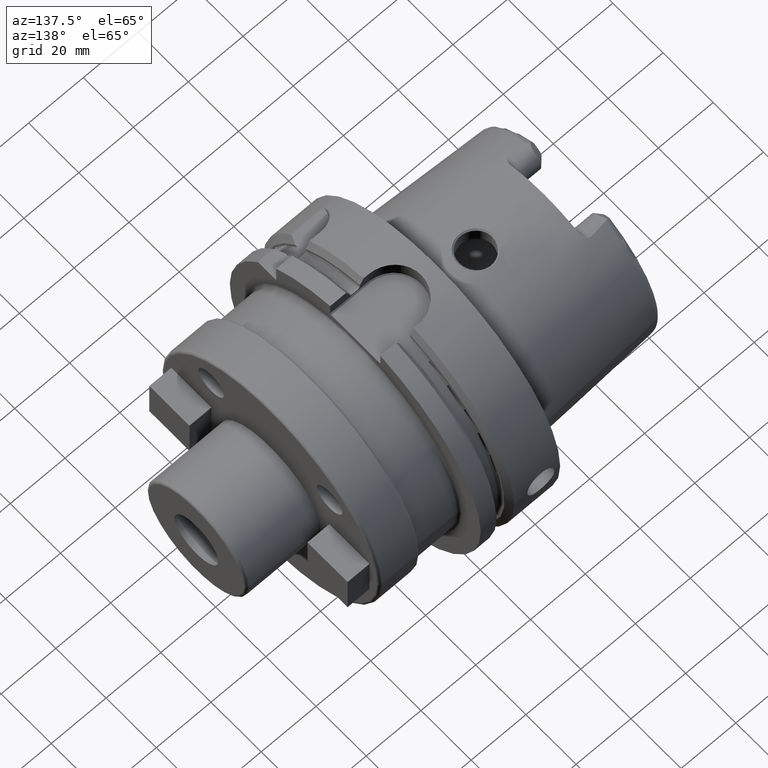
[diagram: clean part render]
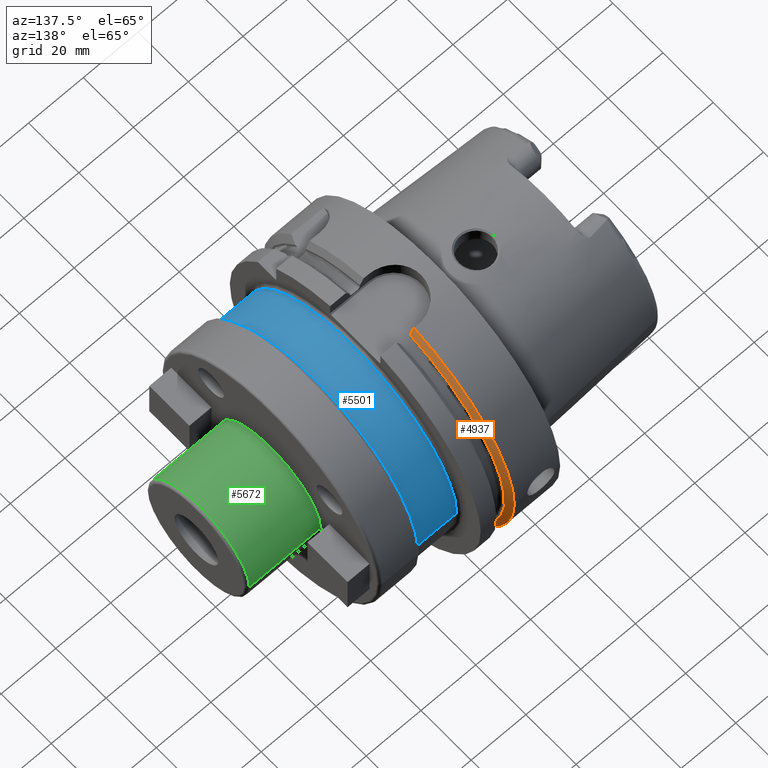
[diagram: same view with three faces highlighted in distinct colors, each labeled with its STEP entity id]
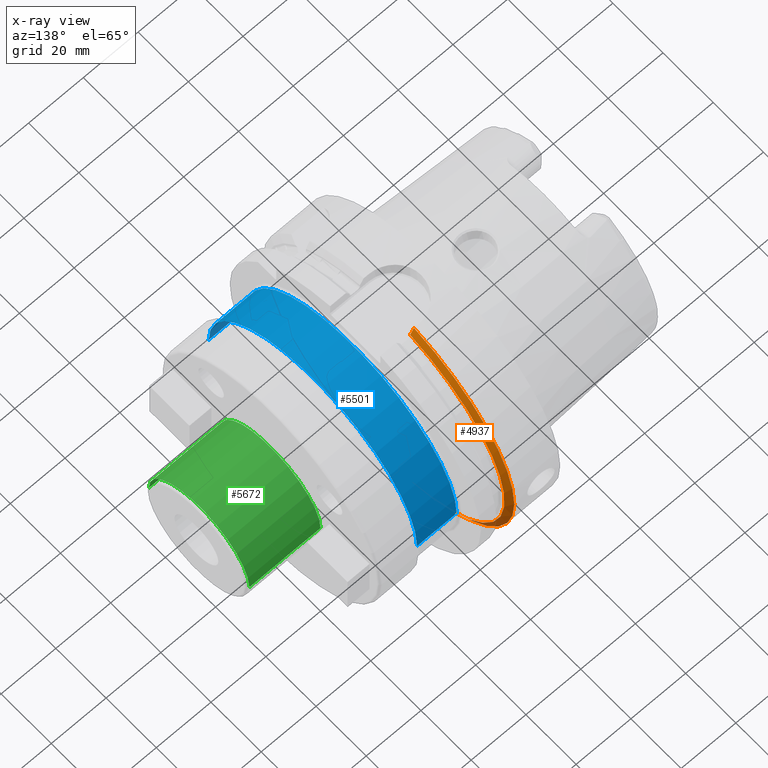
[diagram: x-ray of the same camera — body ghosted, the three highlighted faces saturated]
A machine part, auxiliary view with three faces highlighted in distinct colors.
The next image is the same camera in x-ray (body ghosted, the three faces saturated) — at least one of them is partly hidden behind the body in this view.
Their STEP definitions:

[orange] entity #4937 — the highlighted conical surface has half-angle 60 deg.
#983=CARTESIAN_POINT('',(1.675240473581E1,0.E0,0.E0));
#984=DIRECTION('',(1.E0,0.E0,0.E0));
#985=DIRECTION('',(0.E0,1.E0,0.E0));
#986=AXIS2_PLACEMENT_3D('',#983,#984,#985);
#1153=CARTESIAN_POINT('',(1.675240473581E1,0.E0,0.E0));
#1154=DIRECTION('',(1.E0,0.E0,0.E0));
#1155=DIRECTION('',(0.E0,2.2E-1,-9.754998718606E-1));
#1156=AXIS2_PLACEMENT_3D('',#1153,#1154,#1155);
#1293=CARTESIAN_POINT('',(1.675240473581E1,1.1E1,-4.877499359303E1));
#1294=CARTESIAN_POINT('',(1.690924381756E1,1.1E1,-4.849651763825E1));
#1295=CARTESIAN_POINT('',(1.722003488111E1,1.1E1,-4.794446101512E1));
#1296=CARTESIAN_POINT('',(1.767748451792E1,1.1E1,-4.713119970766E1));
#1297=CARTESIAN_POINT('',(1.797678145324E1,1.1E1,-4.659863454325E1));
#1298=CARTESIAN_POINT('',(1.8125E1,1.1E1,-4.633477721644E1));
#1300=CARTESIAN_POINT('',(1.8125E1,0.E0,0.E0));
#1301=DIRECTION('',(1.E0,0.E0,0.E0));
#1302=DIRECTION('',(0.E0,2.309827916554E-1,-9.729578356533E-1));
#1303=AXIS2_PLACEMENT_3D('',#1300,#1301,#1302);
#1305=CARTESIAN_POINT('',(1.8125E1,1.E1,4.656083740331E1));
#1306=CARTESIAN_POINT('',(1.797658514585E1,1.E1,4.682376142925E1));
#1307=CARTESIAN_POINT('',(1.767702607707E1,1.E1,4.735424823675E1));
#1308=CARTESIAN_POINT('',(1.721956688963E1,1.E1,4.816377318979E1));
#1309=CARTESIAN_POINT('',(1.690904309270E1,1.E1,4.871289474479E1));
#1310=CARTESIAN_POINT('',(1.675240473581E1,1.E1,4.898979485566E1));
#3290=CARTESIAN_POINT('',(1.675240473581E1,5.E1,0.E0));
#3291=VERTEX_POINT('',#3290);
#3312=CARTESIAN_POINT('',(1.675240473581E1,1.E1,4.898979485566E1));
#3313=VERTEX_POINT('',#3312);
#3318=CARTESIAN_POINT('',(1.8125E1,1.E1,4.656083740331E1));
#3320=VERTEX_POINT('',#3318);
#3341=CARTESIAN_POINT('',(1.675240473581E1,1.1E1,-4.877499359303E1));
#3343=VERTEX_POINT('',#3341);
#3356=CARTESIAN_POINT('',(1.8125E1,1.1E1,-4.633477721644E1));
#3358=VERTEX_POINT('',#3356);
#4923=CARTESIAN_POINT('',(1.743870236790E1,0.E0,0.E0));
#4924=DIRECTION('',(-1.E0,0.E0,0.E0));
#4925=DIRECTION('',(0.E0,1.E0,0.E0));
#4926=AXIS2_PLACEMENT_3D('',#4923,#4924,#4925);
#4927=CONICAL_SURFACE('',#4926,4.881129763210E1,6.E1);
#4928=ORIENTED_EDGE('',*,*,#4820,.T.);
#4930=ORIENTED_EDGE('',*,*,#4929,.T.);
#4932=ORIENTED_EDGE('',*,*,#4931,.T.);
#4933=ORIENTED_EDGE('',*,*,#4599,.F.);
#4934=ORIENTED_EDGE('',*,*,#4780,.F.);
#4935=EDGE_LOOP('',(#4928,#4930,#4932,#4933,#4934));
#4936=FACE_OUTER_BOUND('',#4935,.F.);
#4937=ADVANCED_FACE('',(#4936),#4927,.T.);
#987=CIRCLE('',#986,5.E1);
#1157=CIRCLE('',#1156,5.E1);
#1299=B_SPLINE_CURVE_WITH_KNOTS('',3,(#1293,#1294,#1295,#1296,#1297,#1298),
.UNSPECIFIED.,.F.,.F.,(4,1,1,4),(0.E0,3.333333333333E-1,6.666666666667E-1,1.E0),
.UNSPECIFIED.);
#1304=CIRCLE('',#1303,4.762259526419E1);
#1311=B_SPLINE_CURVE_WITH_KNOTS('',3,(#1305,#1306,#1307,#1308,#1309,#1310),
.UNSPECIFIED.,.F.,.F.,(4,1,1,4),(0.E0,3.333333333333E-1,6.666666666667E-1,1.E0),
.UNSPECIFIED.);
#4599=EDGE_CURVE('',#3291,#3313,#987,.T.);
#4780=EDGE_CURVE('',#3343,#3291,#1157,.T.);
#4820=EDGE_CURVE('',#3343,#3358,#1299,.T.);
#4929=EDGE_CURVE('',#3358,#3320,#1304,.T.);
#4931=EDGE_CURVE('',#3320,#3313,#1311,.T.);

[blue] entity #5501 — the highlighted cylindrical surface (partial cylindrical patch) has radius 41.5 mm, axis along (1, 0, 0).
#1820=DIRECTION('',(1.E0,0.E0,1.373446375787E-14));
#1821=VECTOR('',#1820,1.45E1);
#1822=CARTESIAN_POINT('',(3.E1,4.15E1,-2.310847920756E-14));
#1823=LINE('',#1822,#1821);
#1829=DIRECTION('',(1.E0,0.E0,-1.354376381161E-14));
#1830=VECTOR('',#1829,1.45E1);
#1831=CARTESIAN_POINT('',(3.E1,-4.15E1,2.043972103181E-14));
#1832=LINE('',#1831,#1830);
#1863=CARTESIAN_POINT('',(4.45E1,0.E0,0.E0));
#1864=DIRECTION('',(-1.E0,0.E0,0.E0));
#1865=DIRECTION('',(0.E0,-1.E0,0.E0));
#1866=AXIS2_PLACEMENT_3D('',#1863,#1864,#1865);
#1868=CARTESIAN_POINT('',(3.E1,0.E0,0.E0));
#1869=DIRECTION('',(-1.E0,0.E0,0.E0));
#1870=DIRECTION('',(0.E0,-1.E0,0.E0));
#1871=AXIS2_PLACEMENT_3D('',#1868,#1869,#1870);
#3577=CARTESIAN_POINT('',(4.45E1,4.15E1,0.E0));
#3578=CARTESIAN_POINT('',(4.45E1,-4.15E1,-1.016456843292E-14));
#3579=VERTEX_POINT('',#3577);
#3580=VERTEX_POINT('',#3578);
#3581=CARTESIAN_POINT('',(3.E1,4.15E1,0.E0));
#3582=CARTESIAN_POINT('',(3.E1,-4.15E1,-1.016456843292E-14));
#3583=VERTEX_POINT('',#3581);
#3584=VERTEX_POINT('',#3582);
#5489=CARTESIAN_POINT('',(2.8175E1,0.E0,0.E0));
#5490=DIRECTION('',(1.E0,0.E0,0.E0));
#5491=DIRECTION('',(0.E0,-1.E0,0.E0));
#5492=AXIS2_PLACEMENT_3D('',#5489,#5490,#5491);
#5493=CYLINDRICAL_SURFACE('',#5492,4.15E1);
#5494=ORIENTED_EDGE('',*,*,#5483,.F.);
#5495=ORIENTED_EDGE('',*,*,#5439,.F.);
#5497=ORIENTED_EDGE('',*,*,#5496,.T.);
#5498=ORIENTED_EDGE('',*,*,#5436,.T.);
#5499=EDGE_LOOP('',(#5494,#5495,#5497,#5498));
#5500=FACE_OUTER_BOUND('',#5499,.F.);
#5501=ADVANCED_FACE('',(#5500),#5493,.T.);
#1867=CIRCLE('',#1866,4.15E1);
#1872=CIRCLE('',#1871,4.15E1);
#5436=EDGE_CURVE('',#3583,#3579,#1823,.T.);
#5439=EDGE_CURVE('',#3584,#3580,#1832,.T.);
#5483=EDGE_CURVE('',#3580,#3579,#1867,.T.);
#5496=EDGE_CURVE('',#3584,#3583,#1872,.T.);

[green] entity #5672 — the highlighted cylindrical surface (partial cylindrical patch) has radius 20 mm, axis along (1, 0, 0).
#1926=CARTESIAN_POINT('',(6.E1,0.E0,0.E0));
#1927=DIRECTION('',(1.E0,0.E0,0.E0));
#1928=DIRECTION('',(0.E0,1.E0,0.E0));
#1929=AXIS2_PLACEMENT_3D('',#1926,#1927,#1928);
#2018=CARTESIAN_POINT('',(8.6E1,0.E0,0.E0));
#2019=DIRECTION('',(-1.E0,0.E0,0.E0));
#2020=DIRECTION('',(0.E0,-1.E0,0.E0));
#2021=AXIS2_PLACEMENT_3D('',#2018,#2019,#2020);
#2038=DIRECTION('',(-1.E0,0.E0,0.E0));
#2039=VECTOR('',#2038,2.6E1);
#2040=CARTESIAN_POINT('',(8.6E1,2.E1,-1.445858002506E-13));
#2041=LINE('',#2040,#2039);
#2042=DIRECTION('',(-1.E0,0.E0,0.E0));
#2043=VECTOR('',#2042,2.6E1);
#2044=CARTESIAN_POINT('',(8.6E1,-2.E1,1.395325847525E-13));
#2045=LINE('',#2044,#2043);
#3471=CARTESIAN_POINT('',(6.E1,2.E1,0.E0));
#3472=CARTESIAN_POINT('',(6.E1,-2.E1,0.E0));
#3473=VERTEX_POINT('',#3471);
#3474=VERTEX_POINT('',#3472);
#3493=CARTESIAN_POINT('',(8.6E1,-2.E1,0.E0));
#3494=CARTESIAN_POINT('',(8.6E1,2.E1,0.E0));
#3495=VERTEX_POINT('',#3493);
#3496=VERTEX_POINT('',#3494);
#5658=CARTESIAN_POINT('',(2.61E1,0.E0,0.E0));
#5659=DIRECTION('',(1.E0,0.E0,0.E0));
#5660=DIRECTION('',(0.E0,-1.E0,0.E0));
#5661=AXIS2_PLACEMENT_3D('',#5658,#5659,#5660);
#5662=CYLINDRICAL_SURFACE('',#5661,2.E1);
#5664=ORIENTED_EDGE('',*,*,#5663,.F.);
#5666=ORIENTED_EDGE('',*,*,#5665,.T.);
#5667=ORIENTED_EDGE('',*,*,#5607,.F.);
#5669=ORIENTED_EDGE('',*,*,#5668,.F.);
#5670=EDGE_LOOP('',(#5664,#5666,#5667,#5669));
#5671=FACE_OUTER_BOUND('',#5670,.F.);
#5672=ADVANCED_FACE('',(#5671),#5662,.T.);
#1930=CIRCLE('',#1929,2.E1);
#2022=CIRCLE('',#2021,2.E1);
#5607=EDGE_CURVE('',#3473,#3474,#1930,.T.);
#5663=EDGE_CURVE('',#3495,#3496,#2022,.T.);
#5665=EDGE_CURVE('',#3495,#3474,#2045,.T.);
#5668=EDGE_CURVE('',#3496,#3473,#2041,.T.);